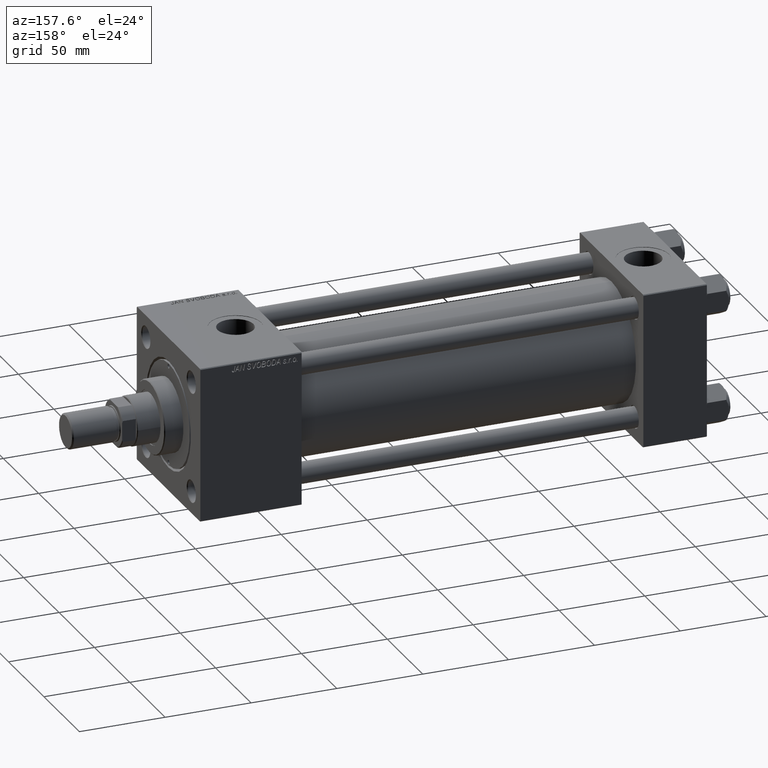
[diagram: clean part render]
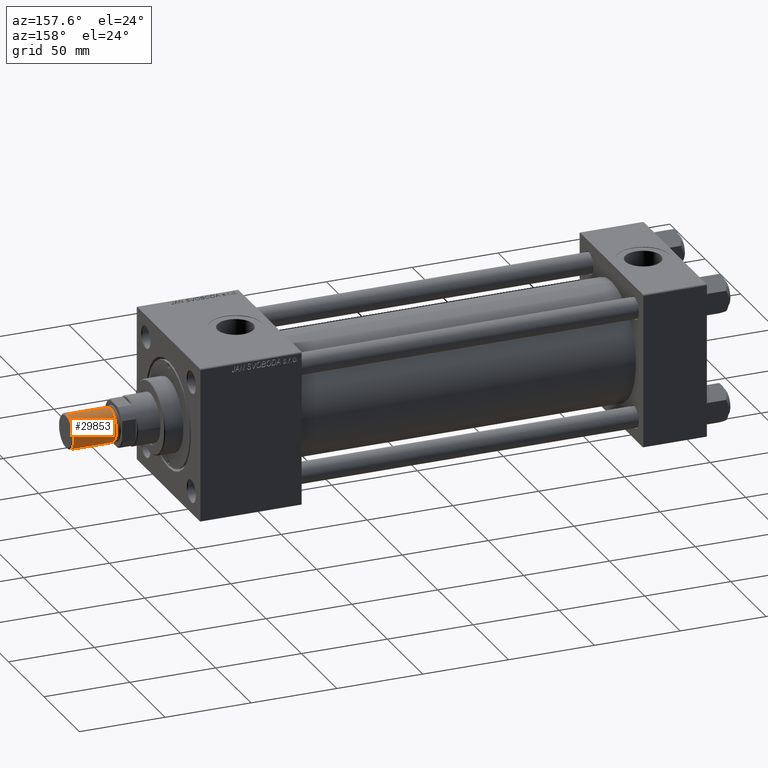
[diagram: same view with one face highlighted and labeled with its STEP entity id]
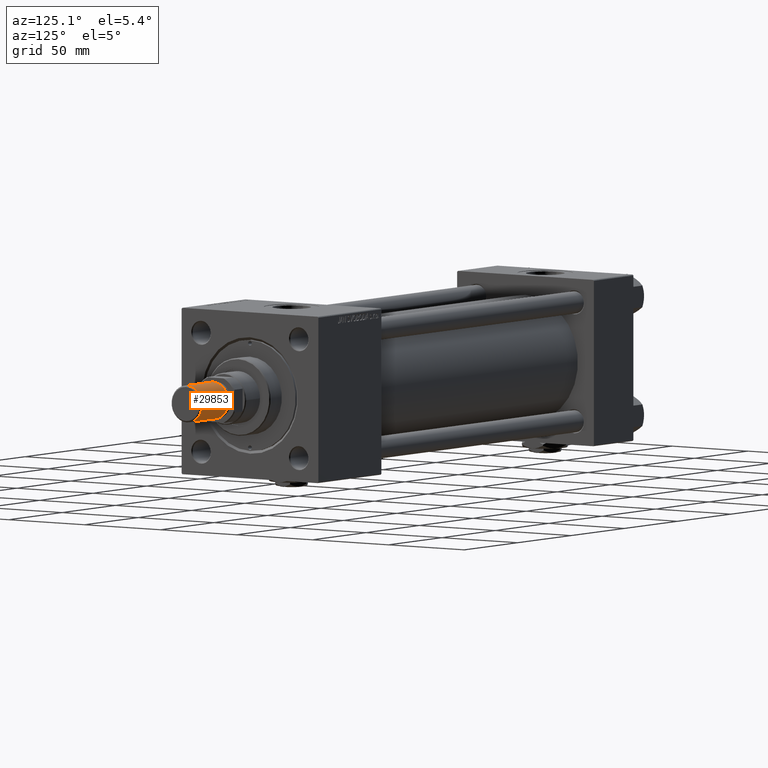
[diagram: same view with one face highlighted and labeled with its STEP entity id]
A machine part, auxiliary view. The second image highlights one B-rep face of the part: STEP entity #29853.
A second angle (auxiliary view) of the same face is appended — the face is thin or edge-on in the first view.
In plain terms, the highlighted cylindrical surface (edge-blend (fillet) strip) has radius 10 mm, axis along (1, -0, -0).
Its self-contained STEP definition (entity closure, byte-faithful):
#1530 = DIRECTION ( 'NONE',  ( -0.000000000000000000, -0.000000000000000000, -1.000000000000000000 ) ) ;
#1921 = VERTEX_POINT ( 'NONE', #22648 ) ;
#2407 = FACE_OUTER_BOUND ( 'NONE', #5143, .T. ) ;
#3538 = DIRECTION ( 'NONE',  ( -0.000000000000000000, -0.000000000000000000, -1.000000000000000000 ) ) ;
#3884 = DIRECTION ( 'NONE',  ( 1.000000000000000000, 0.000000000000000000, 0.000000000000000000 ) ) ;
#4142 = CARTESIAN_POINT ( 'NONE',  ( 0.000000000000000000, 0.000000000000000000, 25.50000000000000000 ) ) ;
#5143 = EDGE_LOOP ( 'NONE', ( #14344, #48320, #50308, #26318 ) ) ;
#6766 = LINE ( 'NONE', #48506, #8912 ) ;
#8912 = VECTOR ( 'NONE', #3538, 1000.000000000000000 ) ;
#9090 = EDGE_CURVE ( 'NONE', #31937, #1921, #36276, .T. ) ;
#12844 = CARTESIAN_POINT ( 'NONE',  ( -10.00000000000000000, 0.000000000000000000, 25.50000000000000000 ) ) ;
#13194 = AXIS2_PLACEMENT_3D ( 'NONE', #27295, #39358, #43635 ) ;
#14344 = ORIENTED_EDGE ( 'NONE', *, *, #52028, .F. ) ;
#14702 = CARTESIAN_POINT ( 'NONE',  ( 0.000000000000000000, 0.000000000000000000, 25.50000000000000000 ) ) ;
#15245 = CIRCLE ( 'NONE', #52006, 10.00000000000000000 ) ;
#17266 = EDGE_CURVE ( 'NONE', #17632, #31937, #6766, .T. ) ;
#17632 = VERTEX_POINT ( 'NONE', #22624 ) ;
#20326 = LINE ( 'NONE', #12844, #24470 ) ;
#22624 = CARTESIAN_POINT ( 'NONE',  ( 10.00000000000000000, 1.224646799147353256E-15, 25.50000000000000000 ) ) ;
#22648 = CARTESIAN_POINT ( 'NONE',  ( -10.00000000000000000, 0.000000000000000000, 0.8000000000000055955 ) ) ;
#24030 = DIRECTION ( 'NONE',  ( -0.000000000000000000, -0.000000000000000000, -1.000000000000000000 ) ) ;
#24470 = VECTOR ( 'NONE', #1530, 1000.000000000000000 ) ;
#24634 = CARTESIAN_POINT ( 'NONE',  ( -10.00000000000000000, 0.000000000000000000, 25.50000000000000000 ) ) ;
#25080 = DIRECTION ( 'NONE',  ( -1.000000000000000000, 0.000000000000000000, 0.000000000000000000 ) ) ;
#26318 = ORIENTED_EDGE ( 'NONE', *, *, #47902, .F. ) ;
#27295 = CARTESIAN_POINT ( 'NONE',  ( 0.000000000000000000, 0.000000000000000000, 0.8000000000000055955 ) ) ;
#29853 = ADVANCED_FACE ( 'NONE', ( #2407 ), #51370, .T. ) ;
#31937 = VERTEX_POINT ( 'NONE', #32057 ) ;
#32057 = CARTESIAN_POINT ( 'NONE',  ( 10.00000000000000000, 1.224646799147353256E-15, 0.8000000000000055955 ) ) ;
#34931 = AXIS2_PLACEMENT_3D ( 'NONE', #14702, #24030, #25080 ) ;
#36276 = CIRCLE ( 'NONE', #13194, 10.00000000000000000 ) ;
#37326 = DIRECTION ( 'NONE',  ( 0.000000000000000000, 0.000000000000000000, 1.000000000000000000 ) ) ;
#39358 = DIRECTION ( 'NONE',  ( -0.000000000000000000, -0.000000000000000000, 1.000000000000000000 ) ) ;
#43635 = DIRECTION ( 'NONE',  ( 1.000000000000000000, 0.000000000000000000, 0.000000000000000000 ) ) ;
#47902 = EDGE_CURVE ( 'NONE', #51224, #1921, #20326, .T. ) ;
#48320 = ORIENTED_EDGE ( 'NONE', *, *, #17266, .T. ) ;
#48506 = CARTESIAN_POINT ( 'NONE',  ( 10.00000000000000000, 1.224646799147353256E-15, 25.50000000000000000 ) ) ;
#50308 = ORIENTED_EDGE ( 'NONE', *, *, #9090, .T. ) ;
#51224 = VERTEX_POINT ( 'NONE', #24634 ) ;
#51370 = CYLINDRICAL_SURFACE ( 'NONE', #34931, 10.00000000000000000 ) ;
#52006 = AXIS2_PLACEMENT_3D ( 'NONE', #4142, #37326, #3884 ) ;
#52028 = EDGE_CURVE ( 'NONE', #17632, #51224, #15245, .T. ) ;